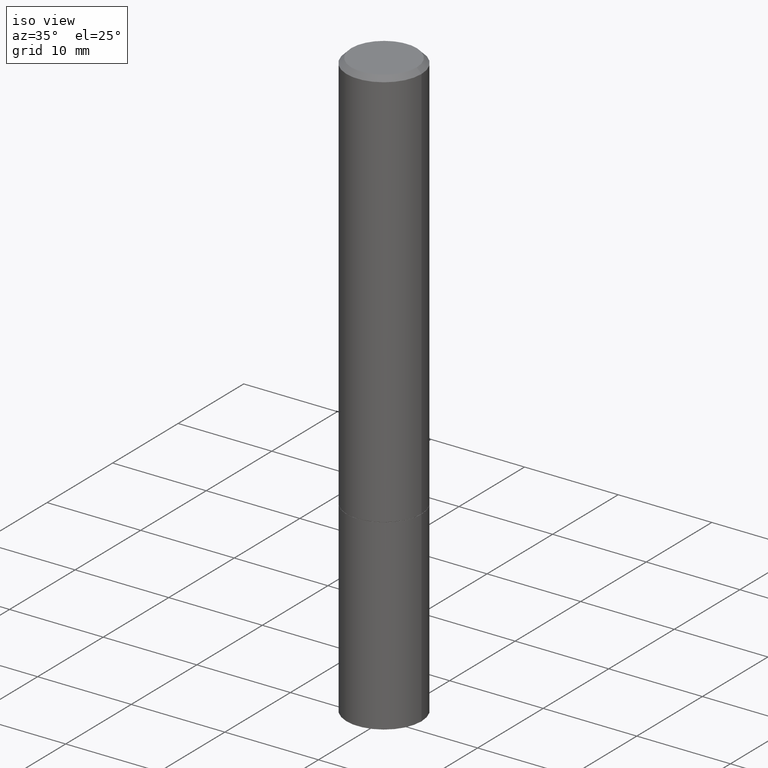
[diagram: clean part render]
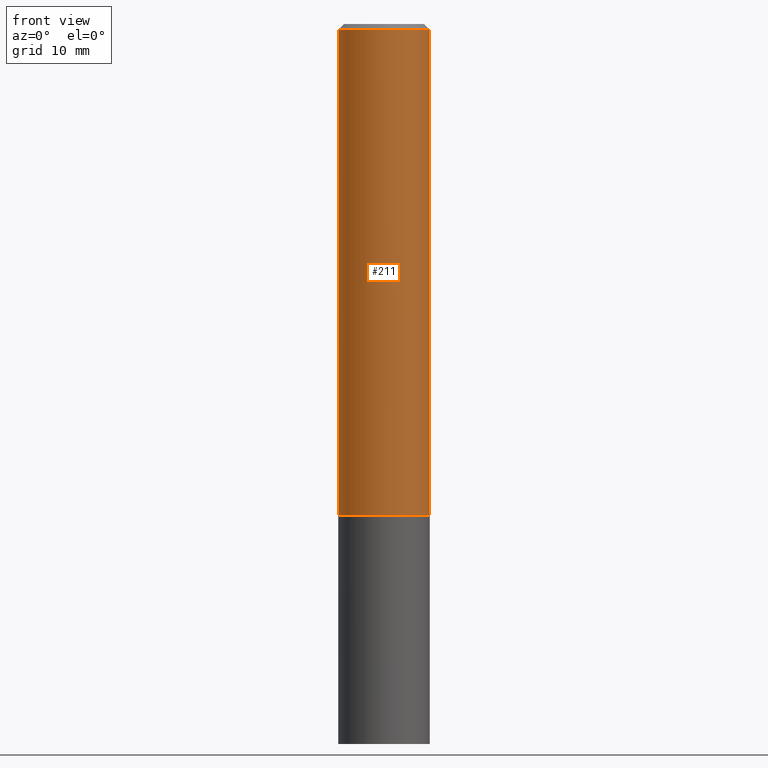
[diagram: tour spotlight — one face highlighted and labeled with its STEP entity id]
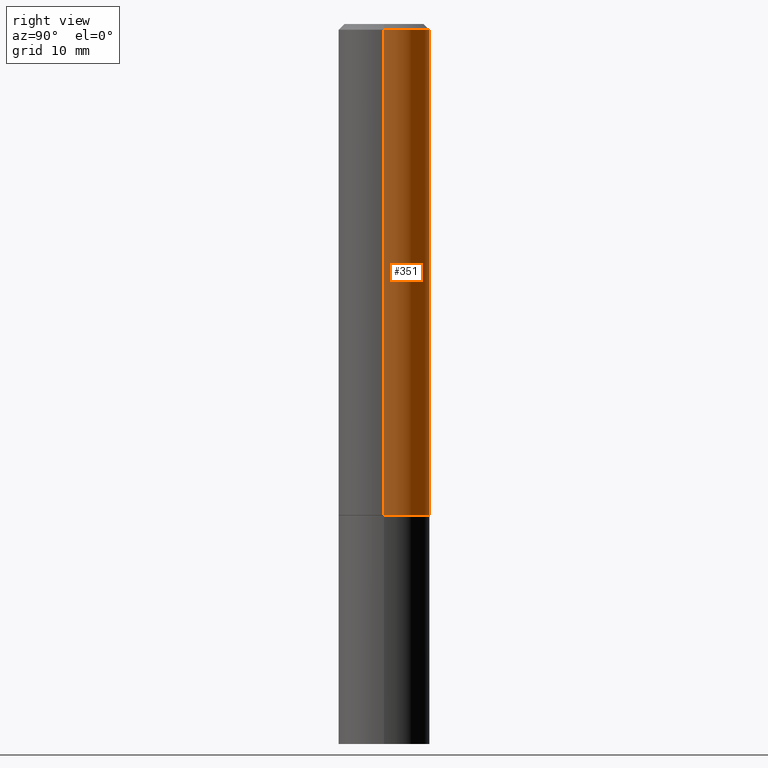
[diagram: tour spotlight — one face highlighted and labeled with its STEP entity id]
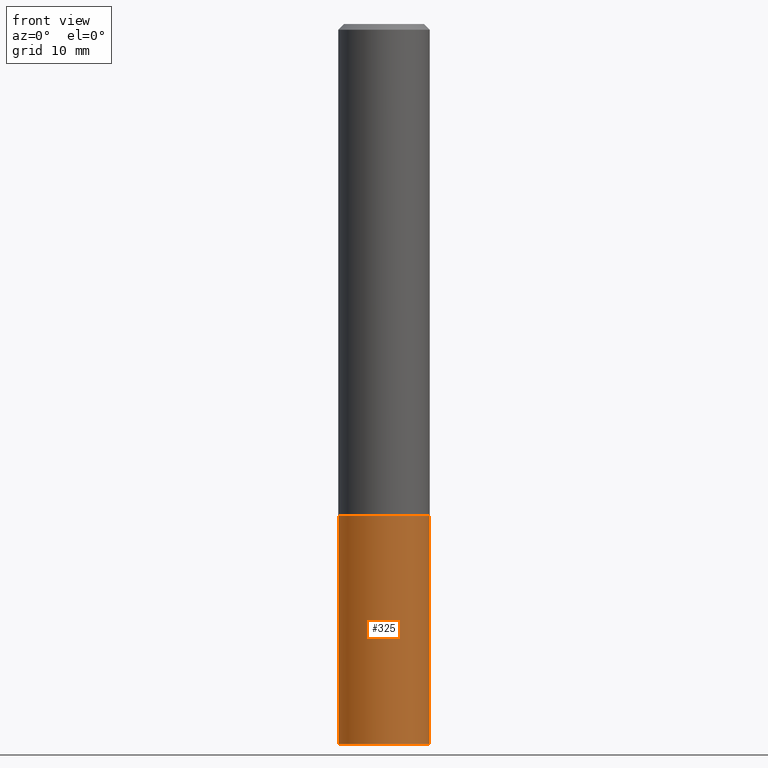
[diagram: tour spotlight — one face highlighted and labeled with its STEP entity id]
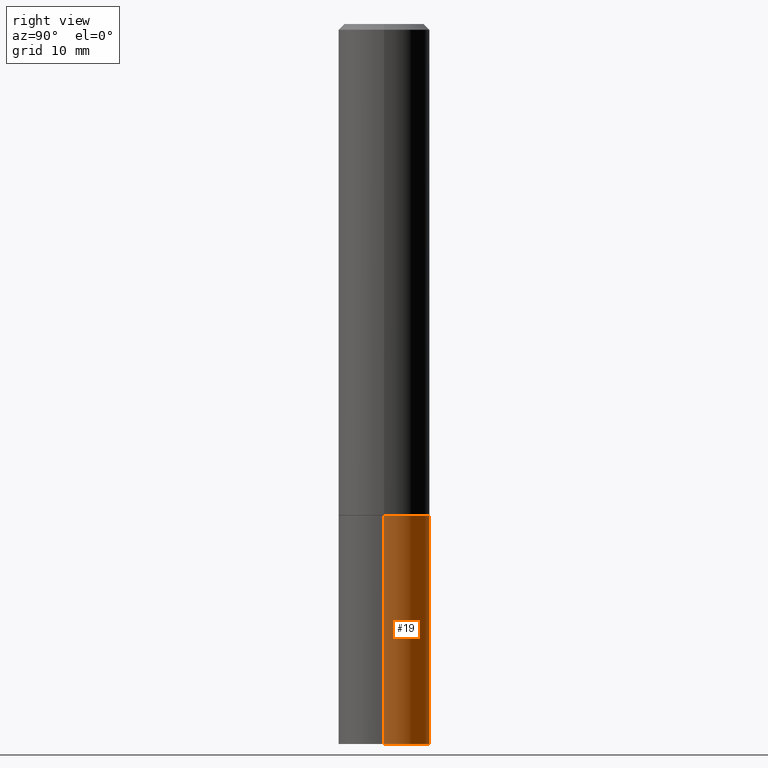
[diagram: tour spotlight — one face highlighted and labeled with its STEP entity id]
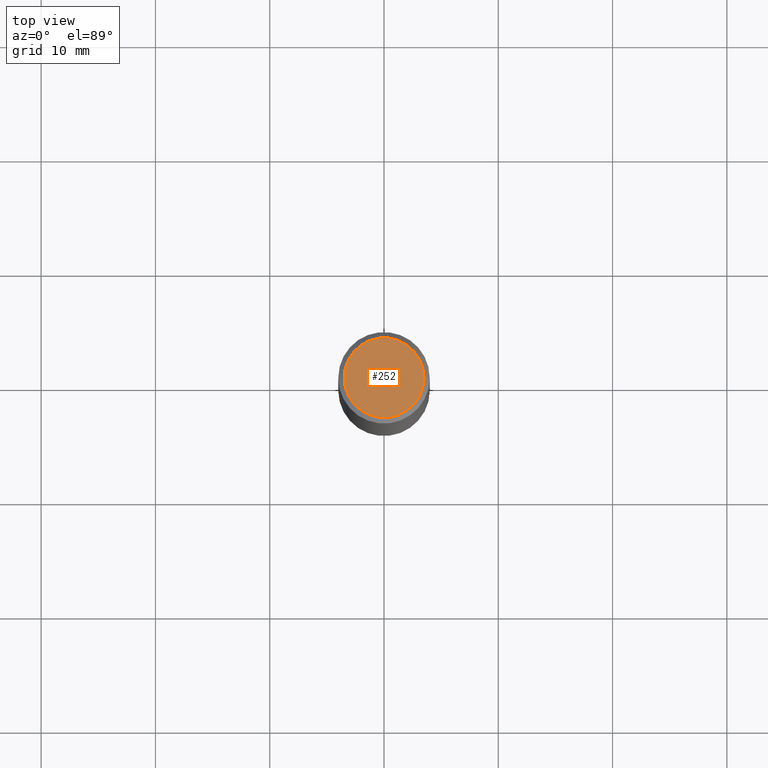
[diagram: tour spotlight — one face highlighted and labeled with its STEP entity id]
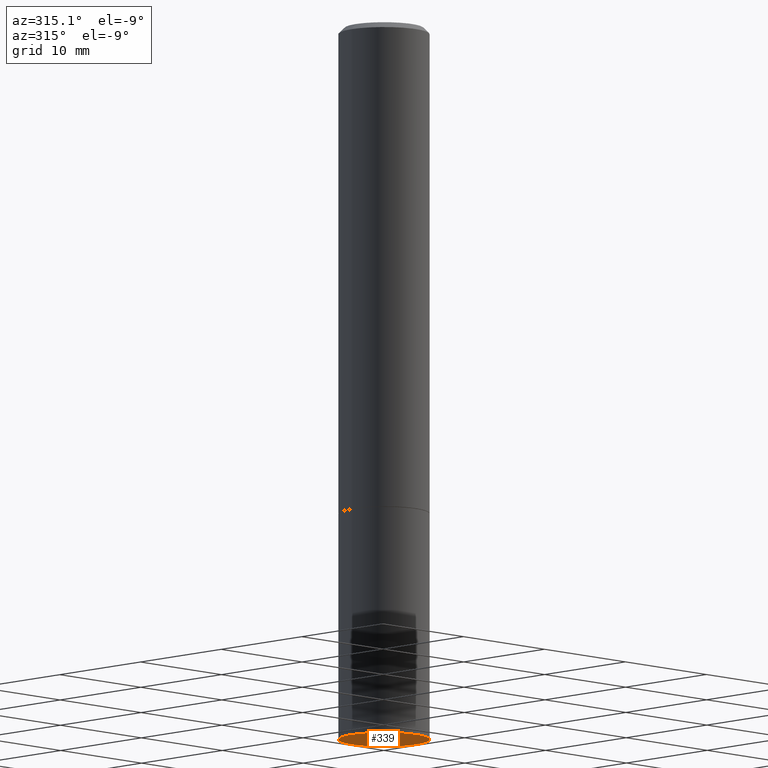
[diagram: tour spotlight — one face highlighted and labeled with its STEP entity id]
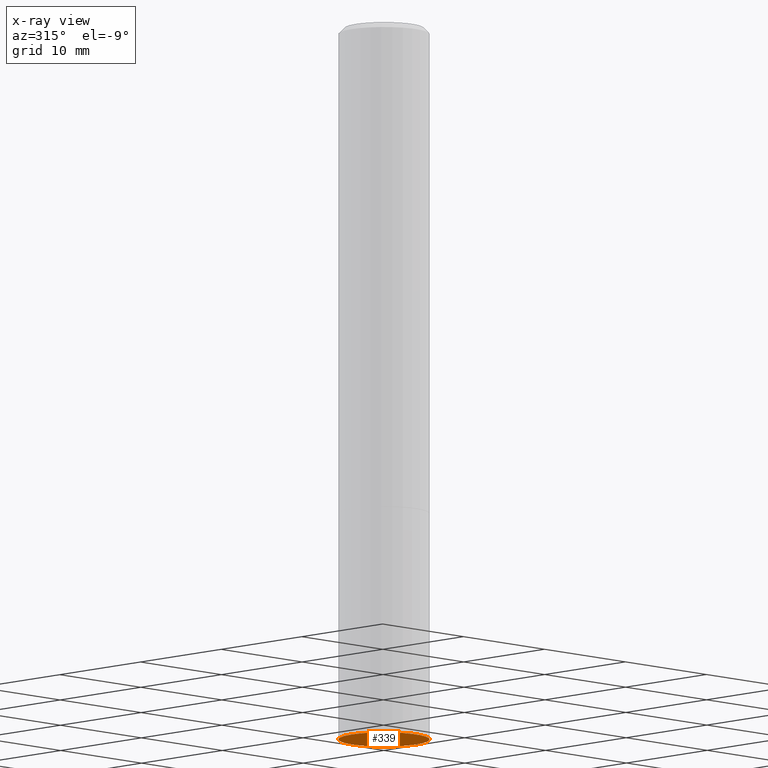
[diagram: x-ray of the same camera — body ghosted, this tour face saturated]
A machine part: a face-by-face anatomy tour. The part has 12 B-rep faces; the first image is the clean iso view, then the 6 largest visible faces are spotlighted one at a time (largest first), each with its STEP entity span.

Face 1 — front view, entity #211. In plain terms, the highlighted cylindrical surface (partial cylindrical patch) has radius 4.0005 mm, axis along (-0, 0, 1).
Definition (entity closure, byte-faithful):
#1 = VECTOR ( 'NONE', #138, 39.37007874015748143 ) ;
#14 = CARTESIAN_POINT ( 'NONE',  ( 0.000000000000000000, 0.000000000000000000, 0.000000000000000000 ) ) ;
#22 = CARTESIAN_POINT ( 'NONE',  ( 0.1574999999999998901, -1.099816621735586297E-15, 7.679978421878593829E-30 ) ) ;
#37 = EDGE_CURVE ( 'NONE', #353, #96, #289, .T. ) ;
#57 = DIRECTION ( 'NONE',  ( 1.000000000000000000, -6.982962677686268288E-15, 0.000000000000000000 ) ) ;
#59 = DIRECTION ( 'NONE',  ( -2.445468806185136597E-29, 3.491481338843145583E-15, 1.000000000000000000 ) ) ;
#96 = VERTEX_POINT ( 'NONE', #136 ) ;
#99 = ORIENTED_EDGE ( 'NONE', *, *, #207, .T. ) ;
#108 = DIRECTION ( 'NONE',  ( -2.445468806185136597E-29, 3.491481338843145583E-15, 1.000000000000000000 ) ) ;
#109 = CARTESIAN_POINT ( 'NONE',  ( 4.890937612370280165E-31, -6.982962677686301470E-17, -0.02000000000000003164 ) ) ;
#112 = EDGE_CURVE ( 'NONE', #148, #353, #196, .T. ) ;
#113 = LINE ( 'NONE', #22, #158 ) ;
#115 = DIRECTION ( 'NONE',  ( -2.445468806185136597E-29, 3.491481338843145583E-15, 1.000000000000000000 ) ) ;
#134 = AXIS2_PLACEMENT_3D ( 'NONE', #109, #59, #329 ) ;
#136 = CARTESIAN_POINT ( 'NONE',  ( 0.1574999999999998346, -1.150358061425878091E-15, -0.02000000000000003164 ) ) ;
#138 = DIRECTION ( 'NONE',  ( -2.445468806185136877E-29, 3.491481338843145188E-15, 1.000000000000000000 ) ) ;
#148 = VERTEX_POINT ( 'NONE', #246 ) ;
#149 = CARTESIAN_POINT ( 'NONE',  ( -0.1574999999999998346, 1.029986994958722802E-15, -0.02000000000000003164 ) ) ;
#158 = VECTOR ( 'NONE', #220, 39.37007874015748143 ) ;
#160 = ORIENTED_EDGE ( 'NONE', *, *, #190, .T. ) ;
#190 = EDGE_CURVE ( 'NONE', #148, #323, #260, .T. ) ;
#196 = LINE ( 'NONE', #221, #1 ) ;
#205 = ORIENTED_EDGE ( 'NONE', *, *, #37, .F. ) ;
#207 = EDGE_CURVE ( 'NONE', #323, #96, #113, .T. ) ;
#211 = ADVANCED_FACE ( 'NONE', ( #253 ), #364, .T. ) ;
#220 = DIRECTION ( 'NONE',  ( -2.445468806185136877E-29, 3.491481338843145188E-15, 1.000000000000000000 ) ) ;
#221 = CARTESIAN_POINT ( 'NONE',  ( -0.1574999999999998901, 1.119104808822157012E-15, -7.747322767151471379E-30 ) ) ;
#239 = ORIENTED_EDGE ( 'NONE', *, *, #112, .F. ) ;
#246 = CARTESIAN_POINT ( 'NONE',  ( -0.1575000000000000011, -1.869428643160631107E-15, -1.691900000000000404 ) ) ;
#248 = CARTESIAN_POINT ( 'NONE',  ( 4.137488673184633315E-29, -5.907237277188718857E-15, -1.691900000000000404 ) ) ;
#253 = FACE_OUTER_BOUND ( 'NONE', #292, .T. ) ;
#260 = CIRCLE ( 'NONE', #265, 0.1575000000000000011 ) ;
#265 = AXIS2_PLACEMENT_3D ( 'NONE', #248, #115, #57 ) ;
#289 = CIRCLE ( 'NONE', #134, 0.1574999999999998346 ) ;
#292 = EDGE_LOOP ( 'NONE', ( #239, #160, #99, #205 ) ) ;
#305 = AXIS2_PLACEMENT_3D ( 'NONE', #14, #108, #327 ) ;
#323 = VERTEX_POINT ( 'NONE', #332 ) ;
#327 = DIRECTION ( 'NONE',  ( 1.000000000000000000, -6.982962677686266711E-15, 4.876176775795935793E-29 ) ) ;
#329 = DIRECTION ( 'NONE',  ( 1.000000000000000000, -6.982962677686265922E-15, 0.000000000000000000 ) ) ;
#332 = CARTESIAN_POINT ( 'NONE',  ( 0.1575000000000000011, -7.007053898924306337E-15, -1.691900000000000404 ) ) ;
#353 = VERTEX_POINT ( 'NONE', #149 ) ;
#364 = CYLINDRICAL_SURFACE ( 'NONE', #305, 0.1574999999999998901 ) ;

Face 2 — right view, entity #351. In plain terms, the highlighted cylindrical surface (partial cylindrical patch) has radius 4.0005 mm, axis along (-0, 0, 1).
Definition (entity closure, byte-faithful):
#1 = VECTOR ( 'NONE', #138, 39.37007874015748143 ) ;
#22 = CARTESIAN_POINT ( 'NONE',  ( 0.1574999999999998901, -1.099816621735586297E-15, 7.679978421878593829E-30 ) ) ;
#32 = DIRECTION ( 'NONE',  ( -2.445468806185136597E-29, 3.491481338843145583E-15, 1.000000000000000000 ) ) ;
#36 = EDGE_LOOP ( 'NONE', ( #128, #299, #66, #328 ) ) ;
#51 = CIRCLE ( 'NONE', #301, 0.1574999999999998346 ) ;
#64 = DIRECTION ( 'NONE',  ( 1.000000000000000000, -6.982962677686266711E-15, 4.876176775795935793E-29 ) ) ;
#66 = ORIENTED_EDGE ( 'NONE', *, *, #124, .F. ) ;
#80 = CARTESIAN_POINT ( 'NONE',  ( 4.890937612370280165E-31, -6.982962677686301470E-17, -0.02000000000000003164 ) ) ;
#96 = VERTEX_POINT ( 'NONE', #136 ) ;
#112 = EDGE_CURVE ( 'NONE', #148, #353, #196, .T. ) ;
#113 = LINE ( 'NONE', #22, #158 ) ;
#124 = EDGE_CURVE ( 'NONE', #96, #353, #51, .T. ) ;
#128 = ORIENTED_EDGE ( 'NONE', *, *, #241, .T. ) ;
#135 = AXIS2_PLACEMENT_3D ( 'NONE', #171, #32, #64 ) ;
#136 = CARTESIAN_POINT ( 'NONE',  ( 0.1574999999999998346, -1.150358061425878091E-15, -0.02000000000000003164 ) ) ;
#138 = DIRECTION ( 'NONE',  ( -2.445468806185136877E-29, 3.491481338843145188E-15, 1.000000000000000000 ) ) ;
#148 = VERTEX_POINT ( 'NONE', #246 ) ;
#149 = CARTESIAN_POINT ( 'NONE',  ( -0.1574999999999998346, 1.029986994958722802E-15, -0.02000000000000003164 ) ) ;
#154 = FACE_OUTER_BOUND ( 'NONE', #36, .T. ) ;
#158 = VECTOR ( 'NONE', #220, 39.37007874015748143 ) ;
#171 = CARTESIAN_POINT ( 'NONE',  ( 0.000000000000000000, 0.000000000000000000, 0.000000000000000000 ) ) ;
#196 = LINE ( 'NONE', #221, #1 ) ;
#199 = AXIS2_PLACEMENT_3D ( 'NONE', #335, #222, #312 ) ;
#207 = EDGE_CURVE ( 'NONE', #323, #96, #113, .T. ) ;
#220 = DIRECTION ( 'NONE',  ( -2.445468806185136877E-29, 3.491481338843145188E-15, 1.000000000000000000 ) ) ;
#221 = CARTESIAN_POINT ( 'NONE',  ( -0.1574999999999998901, 1.119104808822157012E-15, -7.747322767151471379E-30 ) ) ;
#222 = DIRECTION ( 'NONE',  ( -2.445468806185136597E-29, 3.491481338843145583E-15, 1.000000000000000000 ) ) ;
#241 = EDGE_CURVE ( 'NONE', #323, #148, #355, .T. ) ;
#246 = CARTESIAN_POINT ( 'NONE',  ( -0.1575000000000000011, -1.869428643160631107E-15, -1.691900000000000404 ) ) ;
#274 = DIRECTION ( 'NONE',  ( -2.445468806185136597E-29, 3.491481338843145583E-15, 1.000000000000000000 ) ) ;
#288 = CYLINDRICAL_SURFACE ( 'NONE', #135, 0.1574999999999998901 ) ;
#299 = ORIENTED_EDGE ( 'NONE', *, *, #112, .T. ) ;
#301 = AXIS2_PLACEMENT_3D ( 'NONE', #80, #274, #308 ) ;
#308 = DIRECTION ( 'NONE',  ( 1.000000000000000000, -6.982962677686265922E-15, 0.000000000000000000 ) ) ;
#312 = DIRECTION ( 'NONE',  ( 1.000000000000000000, -6.982962677686268288E-15, 0.000000000000000000 ) ) ;
#323 = VERTEX_POINT ( 'NONE', #332 ) ;
#328 = ORIENTED_EDGE ( 'NONE', *, *, #207, .F. ) ;
#332 = CARTESIAN_POINT ( 'NONE',  ( 0.1575000000000000011, -7.007053898924306337E-15, -1.691900000000000404 ) ) ;
#335 = CARTESIAN_POINT ( 'NONE',  ( 4.137488673184633315E-29, -5.907237277188718857E-15, -1.691900000000000404 ) ) ;
#351 = ADVANCED_FACE ( 'NONE', ( #154 ), #288, .T. ) ;
#353 = VERTEX_POINT ( 'NONE', #149 ) ;
#355 = CIRCLE ( 'NONE', #199, 0.1575000000000000011 ) ;

Face 3 — front view, entity #325. In plain terms, the highlighted cylindrical surface (partial cylindrical patch) has radius 4.0005 mm, axis along (-0, 0, 1).
Definition (entity closure, byte-faithful):
#5 = DIRECTION ( 'NONE',  ( -2.445468806185136597E-29, 3.491481338843145583E-15, 1.000000000000000000 ) ) ;
#13 = VECTOR ( 'NONE', #278, 39.37007874015748143 ) ;
#17 = LINE ( 'NONE', #164, #142 ) ;
#20 = CARTESIAN_POINT ( 'NONE',  ( 4.139934141990818918E-29, -5.910728758527562653E-15, -1.692900000000000293 ) ) ;
#29 = DIRECTION ( 'NONE',  ( 1.000000000000000000, -6.982962677686265922E-15, 4.876176775795935232E-29 ) ) ;
#39 = CARTESIAN_POINT ( 'NONE',  ( 0.000000000000000000, 0.000000000000000000, 0.000000000000000000 ) ) ;
#45 = CIRCLE ( 'NONE', #118, 0.1575000000000000011 ) ;
#49 = EDGE_LOOP ( 'NONE', ( #130, #203, #311, #264 ) ) ;
#50 = DIRECTION ( 'NONE',  ( -2.445468806185136597E-29, 3.491481338843145583E-15, 1.000000000000000000 ) ) ;
#55 = CARTESIAN_POINT ( 'NONE',  ( -0.1575000000000000011, -6.166220152807950602E-15, -1.692900000000000293 ) ) ;
#58 = CYLINDRICAL_SURFACE ( 'NONE', #225, 0.1575000000000000011 ) ;
#86 = EDGE_CURVE ( 'NONE', #157, #302, #117, .T. ) ;
#90 = VERTEX_POINT ( 'NONE', #55 ) ;
#117 = CIRCLE ( 'NONE', #321, 0.1575000000000000011 ) ;
#118 = AXIS2_PLACEMENT_3D ( 'NONE', #20, #140, #166 ) ;
#130 = ORIENTED_EDGE ( 'NONE', *, *, #165, .F. ) ;
#140 = DIRECTION ( 'NONE',  ( -2.445468806185136597E-29, 3.491481338843145583E-15, 1.000000000000000000 ) ) ;
#142 = VECTOR ( 'NONE', #310, 39.37007874015748143 ) ;
#157 = VERTEX_POINT ( 'NONE', #307 ) ;
#162 = DIRECTION ( 'NONE',  ( 1.000000000000000000, -6.982962677686261977E-15, 0.000000000000000000 ) ) ;
#164 = CARTESIAN_POINT ( 'NONE',  ( 0.1575000000000000011, -1.099816621735586889E-15, 7.679978421878598033E-30 ) ) ;
#165 = EDGE_CURVE ( 'NONE', #157, #90, #331, .T. ) ;
#166 = DIRECTION ( 'NONE',  ( 1.000000000000000000, -6.982962677686268288E-15, 0.000000000000000000 ) ) ;
#179 = EDGE_CURVE ( 'NONE', #302, #237, #17, .T. ) ;
#182 = EDGE_CURVE ( 'NONE', #90, #237, #45, .T. ) ;
#203 = ORIENTED_EDGE ( 'NONE', *, *, #86, .T. ) ;
#225 = AXIS2_PLACEMENT_3D ( 'NONE', #39, #5, #29 ) ;
#237 = VERTEX_POINT ( 'NONE', #365 ) ;
#247 = CARTESIAN_POINT ( 'NONE',  ( 0.1575000000000000011, -9.759737786468242027E-15, -2.480300000000000171 ) ) ;
#249 = FACE_OUTER_BOUND ( 'NONE', #49, .T. ) ;
#264 = ORIENTED_EDGE ( 'NONE', *, *, #182, .F. ) ;
#278 = DIRECTION ( 'NONE',  ( -2.445468806185136877E-29, 3.491481338843145188E-15, 1.000000000000000000 ) ) ;
#283 = CARTESIAN_POINT ( 'NONE',  ( -0.1575000000000000011, 1.119104808822157801E-15, -7.747322767151475583E-30 ) ) ;
#302 = VERTEX_POINT ( 'NONE', #247 ) ;
#303 = CARTESIAN_POINT ( 'NONE',  ( 6.065496279980994755E-29, -8.659921164732655335E-15, -2.480300000000000171 ) ) ;
#307 = CARTESIAN_POINT ( 'NONE',  ( -0.1575000000000000011, -6.166220152807950602E-15, -2.480300000000000171 ) ) ;
#310 = DIRECTION ( 'NONE',  ( -2.445468806185136877E-29, 3.491481338843145188E-15, 1.000000000000000000 ) ) ;
#311 = ORIENTED_EDGE ( 'NONE', *, *, #179, .T. ) ;
#321 = AXIS2_PLACEMENT_3D ( 'NONE', #303, #50, #162 ) ;
#325 = ADVANCED_FACE ( 'NONE', ( #249 ), #58, .T. ) ;
#331 = LINE ( 'NONE', #283, #13 ) ;
#365 = CARTESIAN_POINT ( 'NONE',  ( 0.1575000000000000011, -7.010545380263150133E-15, -1.692900000000000293 ) ) ;

Face 4 — right view, entity #19. In plain terms, the highlighted cylindrical surface (partial cylindrical patch) has radius 4.0005 mm, axis along (-0, 0, 1).
Definition (entity closure, byte-faithful):
#9 = AXIS2_PLACEMENT_3D ( 'NONE', #27, #314, #21 ) ;
#13 = VECTOR ( 'NONE', #278, 39.37007874015748143 ) ;
#15 = EDGE_CURVE ( 'NONE', #237, #90, #224, .T. ) ;
#17 = LINE ( 'NONE', #164, #142 ) ;
#19 = ADVANCED_FACE ( 'NONE', ( #69 ), #319, .T. ) ;
#21 = DIRECTION ( 'NONE',  ( 1.000000000000000000, -6.982962677686261977E-15, 0.000000000000000000 ) ) ;
#27 = CARTESIAN_POINT ( 'NONE',  ( 6.065496279980994755E-29, -8.659921164732655335E-15, -2.480300000000000171 ) ) ;
#31 = AXIS2_PLACEMENT_3D ( 'NONE', #348, #206, #177 ) ;
#55 = CARTESIAN_POINT ( 'NONE',  ( -0.1575000000000000011, -6.166220152807950602E-15, -1.692900000000000293 ) ) ;
#67 = CARTESIAN_POINT ( 'NONE',  ( 4.139934141990818918E-29, -5.910728758527562653E-15, -1.692900000000000293 ) ) ;
#69 = FACE_OUTER_BOUND ( 'NONE', #231, .T. ) ;
#75 = ORIENTED_EDGE ( 'NONE', *, *, #165, .T. ) ;
#90 = VERTEX_POINT ( 'NONE', #55 ) ;
#93 = ORIENTED_EDGE ( 'NONE', *, *, #15, .F. ) ;
#125 = DIRECTION ( 'NONE',  ( -2.445468806185136597E-29, 3.491481338843145583E-15, 1.000000000000000000 ) ) ;
#142 = VECTOR ( 'NONE', #310, 39.37007874015748143 ) ;
#157 = VERTEX_POINT ( 'NONE', #307 ) ;
#164 = CARTESIAN_POINT ( 'NONE',  ( 0.1575000000000000011, -1.099816621735586889E-15, 7.679978421878598033E-30 ) ) ;
#165 = EDGE_CURVE ( 'NONE', #157, #90, #331, .T. ) ;
#175 = DIRECTION ( 'NONE',  ( 1.000000000000000000, -6.982962677686268288E-15, 0.000000000000000000 ) ) ;
#177 = DIRECTION ( 'NONE',  ( 1.000000000000000000, -6.982962677686265922E-15, 4.876176775795935232E-29 ) ) ;
#179 = EDGE_CURVE ( 'NONE', #302, #237, #17, .T. ) ;
#206 = DIRECTION ( 'NONE',  ( -2.445468806185136597E-29, 3.491481338843145583E-15, 1.000000000000000000 ) ) ;
#224 = CIRCLE ( 'NONE', #352, 0.1575000000000000011 ) ;
#231 = EDGE_LOOP ( 'NONE', ( #342, #75, #93, #350 ) ) ;
#237 = VERTEX_POINT ( 'NONE', #365 ) ;
#247 = CARTESIAN_POINT ( 'NONE',  ( 0.1575000000000000011, -9.759737786468242027E-15, -2.480300000000000171 ) ) ;
#251 = CIRCLE ( 'NONE', #9, 0.1575000000000000011 ) ;
#262 = EDGE_CURVE ( 'NONE', #302, #157, #251, .T. ) ;
#278 = DIRECTION ( 'NONE',  ( -2.445468806185136877E-29, 3.491481338843145188E-15, 1.000000000000000000 ) ) ;
#283 = CARTESIAN_POINT ( 'NONE',  ( -0.1575000000000000011, 1.119104808822157801E-15, -7.747322767151475583E-30 ) ) ;
#302 = VERTEX_POINT ( 'NONE', #247 ) ;
#307 = CARTESIAN_POINT ( 'NONE',  ( -0.1575000000000000011, -6.166220152807950602E-15, -2.480300000000000171 ) ) ;
#310 = DIRECTION ( 'NONE',  ( -2.445468806185136877E-29, 3.491481338843145188E-15, 1.000000000000000000 ) ) ;
#314 = DIRECTION ( 'NONE',  ( -2.445468806185136597E-29, 3.491481338843145583E-15, 1.000000000000000000 ) ) ;
#319 = CYLINDRICAL_SURFACE ( 'NONE', #31, 0.1575000000000000011 ) ;
#331 = LINE ( 'NONE', #283, #13 ) ;
#342 = ORIENTED_EDGE ( 'NONE', *, *, #262, .T. ) ;
#348 = CARTESIAN_POINT ( 'NONE',  ( 0.000000000000000000, 0.000000000000000000, 0.000000000000000000 ) ) ;
#350 = ORIENTED_EDGE ( 'NONE', *, *, #179, .F. ) ;
#352 = AXIS2_PLACEMENT_3D ( 'NONE', #67, #125, #175 ) ;
#365 = CARTESIAN_POINT ( 'NONE',  ( 0.1575000000000000011, -7.010545380263150133E-15, -1.692900000000000293 ) ) ;

Face 5 — top view, entity #252. In plain terms, the highlighted planar face has unit normal (0, -0, -1).
Definition (entity closure, byte-faithful):
#4 = ORIENTED_EDGE ( 'NONE', *, *, #34, .T. ) ;
#11 = VERTEX_POINT ( 'NONE', #184 ) ;
#18 = DIRECTION ( 'NONE',  ( 1.000000000000000000, -6.982962677686265922E-15, 4.876173381029105647E-29 ) ) ;
#34 = EDGE_CURVE ( 'NONE', #317, #11, #81, .T. ) ;
#70 = AXIS2_PLACEMENT_3D ( 'NONE', #186, #168, #18 ) ;
#76 = EDGE_CURVE ( 'NONE', #11, #317, #131, .T. ) ;
#77 = DIRECTION ( 'NONE',  ( -2.445468806185136597E-29, 3.491481338843145583E-15, 1.000000000000000000 ) ) ;
#81 = CIRCLE ( 'NONE', #212, 0.1374999999999998446 ) ;
#85 = DIRECTION ( 'NONE',  ( 1.000000000000000000, -6.982962677686265922E-15, 4.876173381029105647E-29 ) ) ;
#122 = EDGE_LOOP ( 'NONE', ( #4, #155 ) ) ;
#131 = CIRCLE ( 'NONE', #70, 0.1374999999999998446 ) ;
#155 = ORIENTED_EDGE ( 'NONE', *, *, #76, .T. ) ;
#168 = DIRECTION ( 'NONE',  ( -2.445468806185136597E-29, 3.491481338843145583E-15, 1.000000000000000000 ) ) ;
#184 = CARTESIAN_POINT ( 'NONE',  ( 0.1374999999999998446, -1.046838268059731308E-15, 8.537024980207840646E-18 ) ) ;
#186 = CARTESIAN_POINT ( 'NONE',  ( -2.087702828670439639E-46, 2.980686340760894400E-32, 8.537024980200822558E-18 ) ) ;
#212 = AXIS2_PLACEMENT_3D ( 'NONE', #298, #77, #85 ) ;
#242 = AXIS2_PLACEMENT_3D ( 'NONE', #245, #280, #330 ) ;
#245 = CARTESIAN_POINT ( 'NONE',  ( 9.601573681818602922E-16, 0.1374999999999998446, -4.758101716008314943E-16 ) ) ;
#252 = ADVANCED_FACE ( 'NONE', ( #285 ), #306, .F. ) ;
#280 = DIRECTION ( 'NONE',  ( 2.438088387897960049E-29, -3.491481338843145188E-15, -1.000000000000000000 ) ) ;
#285 = FACE_OUTER_BOUND ( 'NONE', #122, .T. ) ;
#298 = CARTESIAN_POINT ( 'NONE',  ( -2.087702828670439639E-46, 2.980686340760894400E-32, 8.537024980200822558E-18 ) ) ;
#306 = PLANE ( 'NONE',  #242 ) ;
#317 = VERTEX_POINT ( 'NONE', #360 ) ;
#330 = DIRECTION ( 'NONE',  ( -1.000000000000000000, 6.982962677686265922E-15, -4.876176775795935793E-29 ) ) ;
#360 = CARTESIAN_POINT ( 'NONE',  ( -0.1374999999999998446, 9.950721815702915469E-16, 8.537024980193986277E-18 ) ) ;

Face 6 — auxiliary view, entity #339. An x-ray twin of the same camera follows (body ghosted, this face saturated) — the face is partly hidden behind the body. In plain terms, the highlighted planar face has unit normal (0, -0, -1).
Definition (entity closure, byte-faithful):
#3 = DIRECTION ( 'NONE',  ( 2.438088387897960049E-29, -3.491481338843145188E-15, -1.000000000000000000 ) ) ;
#8 = PLANE ( 'NONE',  #282 ) ;
#9 = AXIS2_PLACEMENT_3D ( 'NONE', #27, #314, #21 ) ;
#21 = DIRECTION ( 'NONE',  ( 1.000000000000000000, -6.982962677686261977E-15, 0.000000000000000000 ) ) ;
#26 = EDGE_LOOP ( 'NONE', ( #234, #345 ) ) ;
#27 = CARTESIAN_POINT ( 'NONE',  ( 6.065496279980994755E-29, -8.659921164732655335E-15, -2.480300000000000171 ) ) ;
#50 = DIRECTION ( 'NONE',  ( -2.445468806185136597E-29, 3.491481338843145583E-15, 1.000000000000000000 ) ) ;
#86 = EDGE_CURVE ( 'NONE', #157, #302, #117, .T. ) ;
#97 = FACE_OUTER_BOUND ( 'NONE', #26, .T. ) ;
#117 = CIRCLE ( 'NONE', #321, 0.1575000000000000011 ) ;
#157 = VERTEX_POINT ( 'NONE', #307 ) ;
#162 = DIRECTION ( 'NONE',  ( 1.000000000000000000, -6.982962677686261977E-15, 0.000000000000000000 ) ) ;
#234 = ORIENTED_EDGE ( 'NONE', *, *, #262, .F. ) ;
#235 = DIRECTION ( 'NONE',  ( -1.000000000000000000, 6.982962677686265922E-15, -4.876176775795935793E-29 ) ) ;
#247 = CARTESIAN_POINT ( 'NONE',  ( 0.1575000000000000011, -9.759737786468242027E-15, -2.480300000000000171 ) ) ;
#251 = CIRCLE ( 'NONE', #9, 0.1575000000000000011 ) ;
#262 = EDGE_CURVE ( 'NONE', #302, #157, #251, .T. ) ;
#282 = AXIS2_PLACEMENT_3D ( 'NONE', #320, #3, #235 ) ;
#302 = VERTEX_POINT ( 'NONE', #247 ) ;
#303 = CARTESIAN_POINT ( 'NONE',  ( 6.065496279980994755E-29, -8.659921164732655335E-15, -2.480300000000000171 ) ) ;
#307 = CARTESIAN_POINT ( 'NONE',  ( -0.1575000000000000011, -6.166220152807950602E-15, -2.480300000000000171 ) ) ;
#314 = DIRECTION ( 'NONE',  ( -2.445468806185136597E-29, 3.491481338843145583E-15, 1.000000000000000000 ) ) ;
#320 = CARTESIAN_POINT ( 'NONE',  ( 1.099816621735647434E-15, 0.1574999999999913136, -2.480300000000001059 ) ) ;
#321 = AXIS2_PLACEMENT_3D ( 'NONE', #303, #50, #162 ) ;
#339 = ADVANCED_FACE ( 'NONE', ( #97 ), #8, .T. ) ;
#345 = ORIENTED_EDGE ( 'NONE', *, *, #86, .F. ) ;